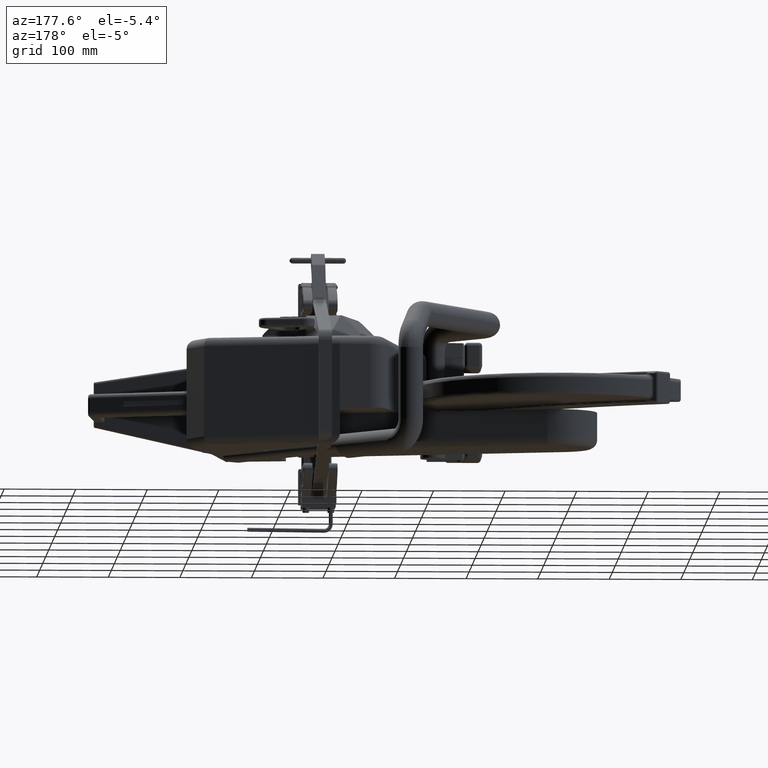
[diagram: clean part render]
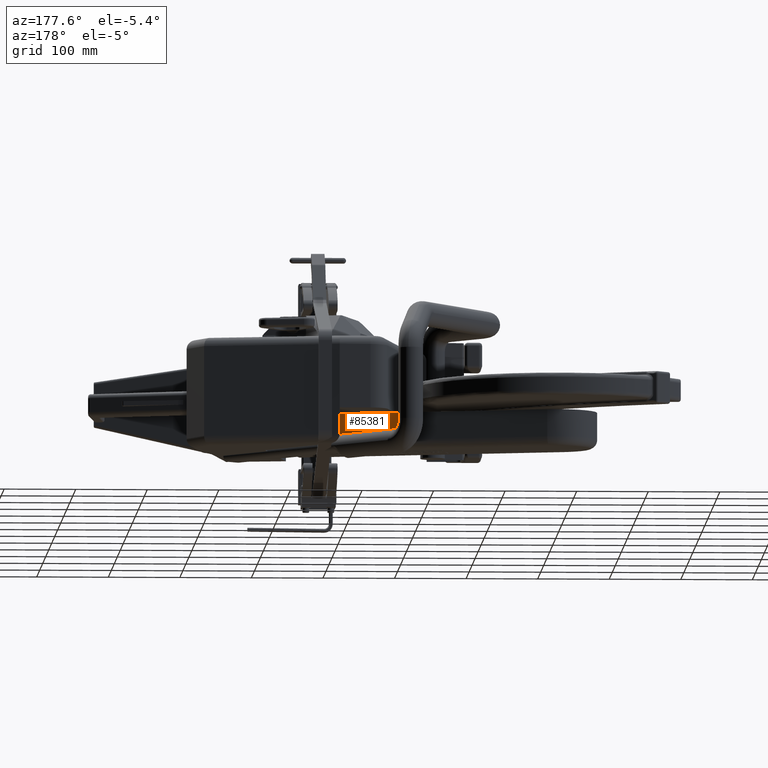
[diagram: same view with one face highlighted and labeled with its STEP entity id]
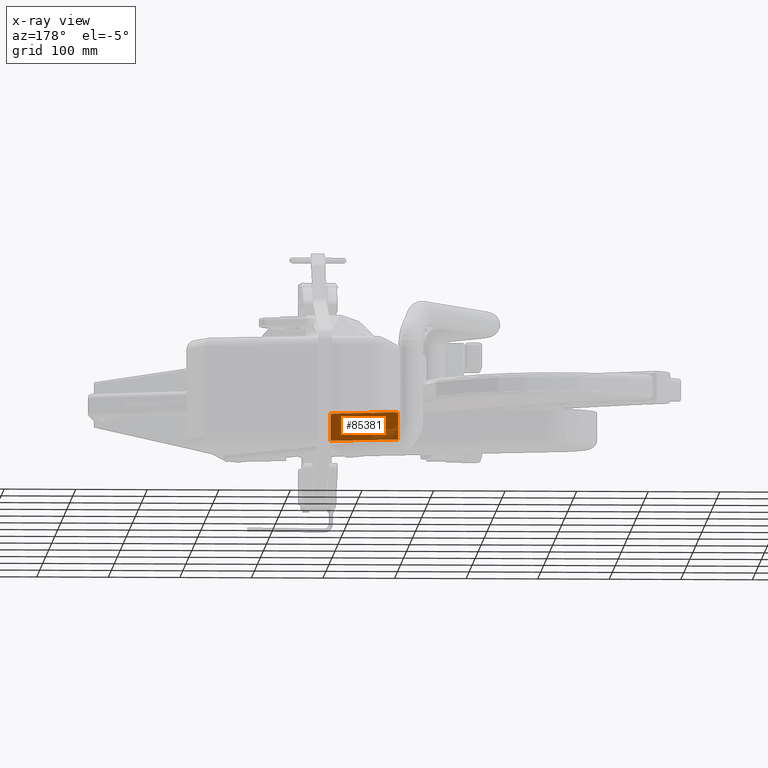
[diagram: x-ray of the same camera — body ghosted, the highlighted face saturated]
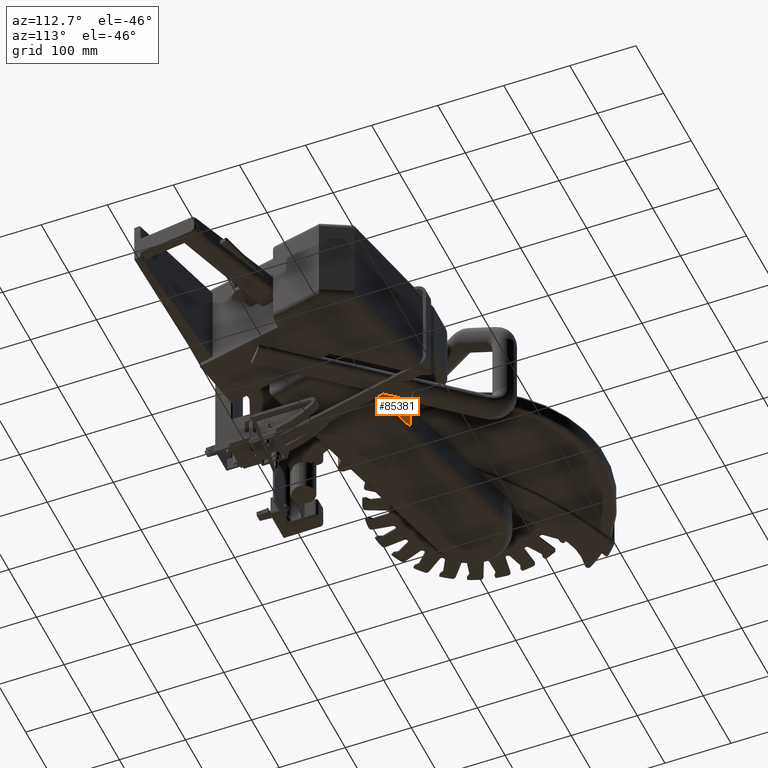
[diagram: same view with one face highlighted and labeled with its STEP entity id]
A machine part, auxiliary view. The second image highlights one B-rep face of the part: STEP entity #85381.
The next image is the same camera in x-ray: the body ghosted, the highlighted face saturated — about 13% of this face is hidden behind the body in this view.
A second angle (auxiliary view) of the same face is appended — the face is thin or edge-on in the first view.
In plain terms, the highlighted planar face has unit normal (-0.2567, -0.9665, 0).
Its self-contained STEP definition (entity closure, byte-faithful):
#677 = DIRECTION ( 'NONE',  ( -0.0000000000000000000, -0.0000000000000000000, 1.000000000000000000 ) ) ;
#1133 = VERTEX_POINT ( 'NONE', #36493 ) ;
#1134 = CARTESIAN_POINT ( 'NONE',  ( 12.36676371894645500, -0.9756596487917313900, -2.375000000000000000 ) ) ;
#2872 = CARTESIAN_POINT ( 'NONE',  ( 12.36676371894645500, -0.9756596487917313900, -2.875000000000000400 ) ) ;
#6482 = EDGE_CURVE ( 'NONE', #25712, #1133, #50774, .T. ) ;
#7584 = ORIENTED_EDGE ( 'NONE', *, *, #53448, .T. ) ;
#10328 = CARTESIAN_POINT ( 'NONE',  ( 8.693332436601588500, -1.092739197465705300E-015, -2.875000000000000400 ) ) ;
#10740 = ORIENTED_EDGE ( 'NONE', *, *, #6482, .T. ) ;
#11056 = EDGE_CURVE ( 'NONE', #61400, #29696, #70613, .T. ) ;
#13603 = VECTOR ( 'NONE', #677, 39.37007874015748100 ) ;
#14895 = CARTESIAN_POINT ( 'NONE',  ( 8.693332436601588500, -1.092739197465705300E-015, -0.8750000000000001100 ) ) ;
#16159 = EDGE_CURVE ( 'NONE', #1133, #45382, #17326, .T. ) ;
#17326 = LINE ( 'NONE', #14895, #52317 ) ;
#25712 = VERTEX_POINT ( 'NONE', #56288 ) ;
#29285 = DIRECTION ( 'NONE',  ( 0.9664913632788469900, -0.2566991326580514400, 0.0000000000000000000 ) ) ;
#29696 = VERTEX_POINT ( 'NONE', #83591 ) ;
#33407 = VECTOR ( 'NONE', #51799, 39.37007874015748100 ) ;
#35885 = VECTOR ( 'NONE', #85093, 39.37007874015748900 ) ;
#36102 = CARTESIAN_POINT ( 'NONE',  ( 8.693332436601588500, -1.092739197465705300E-015, -0.8750000000000001100 ) ) ;
#36493 = CARTESIAN_POINT ( 'NONE',  ( 8.693332436601588500, -1.092739197465705300E-015, -0.8750000000000001100 ) ) ;
#38423 = DIRECTION ( 'NONE',  ( 0.9664913632788469900, -0.2566991326580514400, 0.0000000000000000000 ) ) ;
#39983 = CARTESIAN_POINT ( 'NONE',  ( 8.693332436601592100, -1.639108796198557900E-015, -2.375000000000000000 ) ) ;
#45382 = VERTEX_POINT ( 'NONE', #50956 ) ;
#47071 = DIRECTION ( 'NONE',  ( -0.9664913632788469900, 0.2566991326580514400, -0.0000000000000000000 ) ) ;
#50774 = LINE ( 'NONE', #84522, #13603 ) ;
#50956 = CARTESIAN_POINT ( 'NONE',  ( 8.903252957624465200, -0.05575467895635302700, -0.8750000000000001100 ) ) ;
#51799 = DIRECTION ( 'NONE',  ( -0.0000000000000000000, -0.0000000000000000000, 1.000000000000000000 ) ) ;
#52317 = VECTOR ( 'NONE', #29285, 39.37007874015748900 ) ;
#53386 = FACE_OUTER_BOUND ( 'NONE', #83220, .T. ) ;
#53448 = EDGE_CURVE ( 'NONE', #61400, #25712, #73367, .T. ) ;
#56288 = CARTESIAN_POINT ( 'NONE',  ( 8.693332436601588500, -1.092739197465705300E-015, -2.375000000000000000 ) ) ;
#57618 = AXIS2_PLACEMENT_3D ( 'NONE', #10328, #80347, #38423 ) ;
#61400 = VERTEX_POINT ( 'NONE', #1134 ) ;
#64129 = ORIENTED_EDGE ( 'NONE', *, *, #71729, .T. ) ;
#69473 = ORIENTED_EDGE ( 'NONE', *, *, #11056, .F. ) ;
#70613 = LINE ( 'NONE', #2872, #33407 ) ;
#71147 = VECTOR ( 'NONE', #47071, 39.37007874015748100 ) ;
#71729 = EDGE_CURVE ( 'NONE', #45382, #29696, #85175, .T. ) ;
#73351 = PLANE ( 'NONE',  #57618 ) ;
#73367 = LINE ( 'NONE', #39983, #71147 ) ;
#80347 = DIRECTION ( 'NONE',  ( -0.2566991326580514400, -0.9664913632788469900, 0.0000000000000000000 ) ) ;
#82476 = ORIENTED_EDGE ( 'NONE', *, *, #16159, .T. ) ;
#83220 = EDGE_LOOP ( 'NONE', ( #69473, #7584, #10740, #82476, #64129 ) ) ;
#83591 = CARTESIAN_POINT ( 'NONE',  ( 12.36676371894645500, -0.9756596487917313900, -0.8750000000000001100 ) ) ;
#84522 = CARTESIAN_POINT ( 'NONE',  ( 8.693332436601588500, -1.092739197465705300E-015, -2.875000000000000400 ) ) ;
#85093 = DIRECTION ( 'NONE',  ( 0.9664913632788469900, -0.2566991326580514400, 0.0000000000000000000 ) ) ;
#85175 = LINE ( 'NONE', #36102, #35885 ) ;
#85381 = ADVANCED_FACE ( 'NONE', ( #53386 ), #73351, .F. ) ;